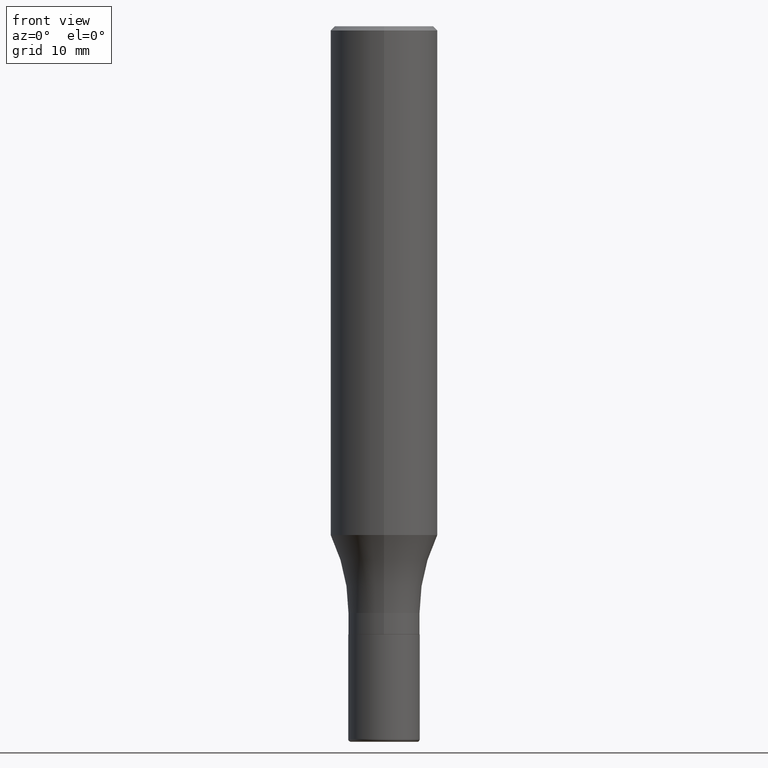
[diagram: clean part render]
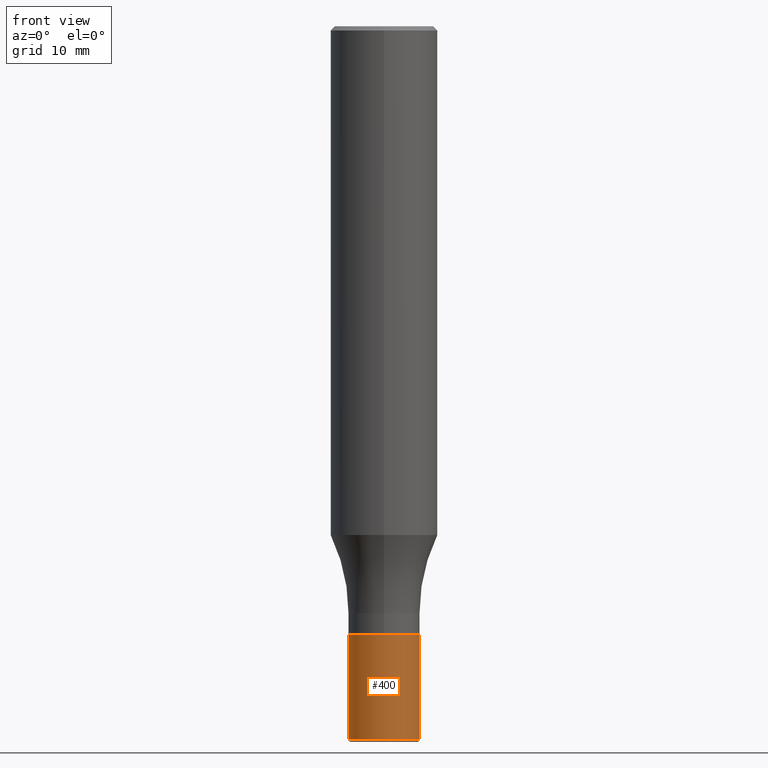
[diagram: same view with one face highlighted and labeled with its STEP entity id]
A machine part, front view. The second image highlights one B-rep face of the part: STEP entity #400.
In plain terms, the highlighted cylindrical surface (edge-blend (fillet) strip) has radius 3.175 mm, axis along (-0, 0, 1).
Its self-contained STEP definition (entity closure, byte-faithful):
#7 = FACE_OUTER_BOUND ( 'NONE', #411, .T. ) ;
#15 = CARTESIAN_POINT ( 'NONE',  ( 0.1250000000000000833, -9.566658868430215055E-15, -2.489999999999999769 ) ) ;
#35 = ORIENTED_EDGE ( 'NONE', *, *, #168, .T. ) ;
#41 = DIRECTION ( 'NONE',  ( -2.445468806185136877E-29, 3.491481338843145188E-15, 1.000000000000000000 ) ) ;
#44 = DIRECTION ( 'NONE',  ( 1.000000000000000000, -6.982962677686265922E-15, 0.000000000000000000 ) ) ;
#45 = CARTESIAN_POINT ( 'NONE',  ( 0.1250000000000000278, -8.728703347107836346E-16, 6.095220969744921142E-30 ) ) ;
#79 = CARTESIAN_POINT ( 'NONE',  ( 0.1250000000000000000, -8.292268179752468540E-15, -2.125000000000000000 ) ) ;
#85 = CARTESIAN_POINT ( 'NONE',  ( 6.089217327400989947E-29, -8.693788533719431716E-15, -2.489999999999999769 ) ) ;
#116 = DIRECTION ( 'NONE',  ( -2.445468806185136597E-29, 3.491481338843145583E-15, 1.000000000000000000 ) ) ;
#117 = ORIENTED_EDGE ( 'NONE', *, *, #449, .T. ) ;
#143 = EDGE_CURVE ( 'NONE', #230, #266, #283, .T. ) ;
#168 = EDGE_CURVE ( 'NONE', #503, #266, #362, .T. ) ;
#178 = AXIS2_PLACEMENT_3D ( 'NONE', #330, #116, #473 ) ;
#187 = ORIENTED_EDGE ( 'NONE', *, *, #410, .F. ) ;
#211 = ORIENTED_EDGE ( 'NONE', *, *, #143, .F. ) ;
#230 = VERTEX_POINT ( 'NONE', #373 ) ;
#236 = LINE ( 'NONE', #394, #307 ) ;
#239 = AXIS2_PLACEMENT_3D ( 'NONE', #288, #442, #395 ) ;
#243 = DIRECTION ( 'NONE',  ( -2.445468806185136597E-29, 3.491481338843145583E-15, 1.000000000000000000 ) ) ;
#266 = VERTEX_POINT ( 'NONE', #79 ) ;
#274 = AXIS2_PLACEMENT_3D ( 'NONE', #85, #243, #44 ) ;
#283 = CIRCLE ( 'NONE', #239, 0.1250000000000000000 ) ;
#288 = CARTESIAN_POINT ( 'NONE',  ( 5.196621213143415268E-29, -7.419397845041685201E-15, -2.125000000000000000 ) ) ;
#307 = VECTOR ( 'NONE', #41, 39.37007874015748143 ) ;
#315 = VECTOR ( 'NONE', #358, 39.37007874015748143 ) ;
#330 = CARTESIAN_POINT ( 'NONE',  ( 0.000000000000000000, 0.000000000000000000, 0.000000000000000000 ) ) ;
#358 = DIRECTION ( 'NONE',  ( -2.445468806185136877E-29, 3.491481338843145188E-15, 1.000000000000000000 ) ) ;
#362 = LINE ( 'NONE', #45, #315 ) ;
#373 = CARTESIAN_POINT ( 'NONE',  ( -0.1250000000000000000, -7.168414769680433226E-15, -2.125000000000000000 ) ) ;
#394 = CARTESIAN_POINT ( 'NONE',  ( -0.1250000000000000278, 8.881784197001254296E-16, -6.148668862818634329E-30 ) ) ;
#395 = DIRECTION ( 'NONE',  ( 1.000000000000000000, -6.982962677686270655E-15, 0.000000000000000000 ) ) ;
#400 = ADVANCED_FACE ( 'NONE', ( #7 ), #437, .T. ) ;
#410 = EDGE_CURVE ( 'NONE', #430, #230, #236, .T. ) ;
#411 = EDGE_LOOP ( 'NONE', ( #187, #117, #35, #211 ) ) ;
#430 = VERTEX_POINT ( 'NONE', #441 ) ;
#437 = CYLINDRICAL_SURFACE ( 'NONE', #178, 0.1250000000000000278 ) ;
#441 = CARTESIAN_POINT ( 'NONE',  ( -0.1250000000000000833, -7.168414769680431648E-15, -2.489999999999999769 ) ) ;
#442 = DIRECTION ( 'NONE',  ( -2.445468806185136597E-29, 3.491481338843145583E-15, 1.000000000000000000 ) ) ;
#449 = EDGE_CURVE ( 'NONE', #430, #503, #478, .T. ) ;
#473 = DIRECTION ( 'NONE',  ( 1.000000000000000000, -6.982962677686267499E-15, 4.876176775795935793E-29 ) ) ;
#478 = CIRCLE ( 'NONE', #274, 0.1250000000000000833 ) ;
#503 = VERTEX_POINT ( 'NONE', #15 ) ;